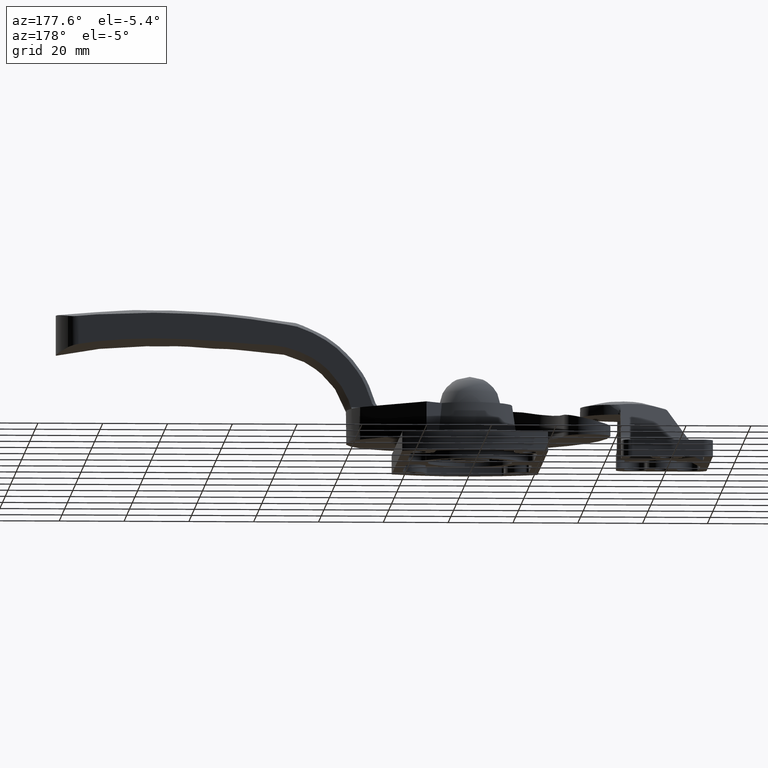
[diagram: clean part render]
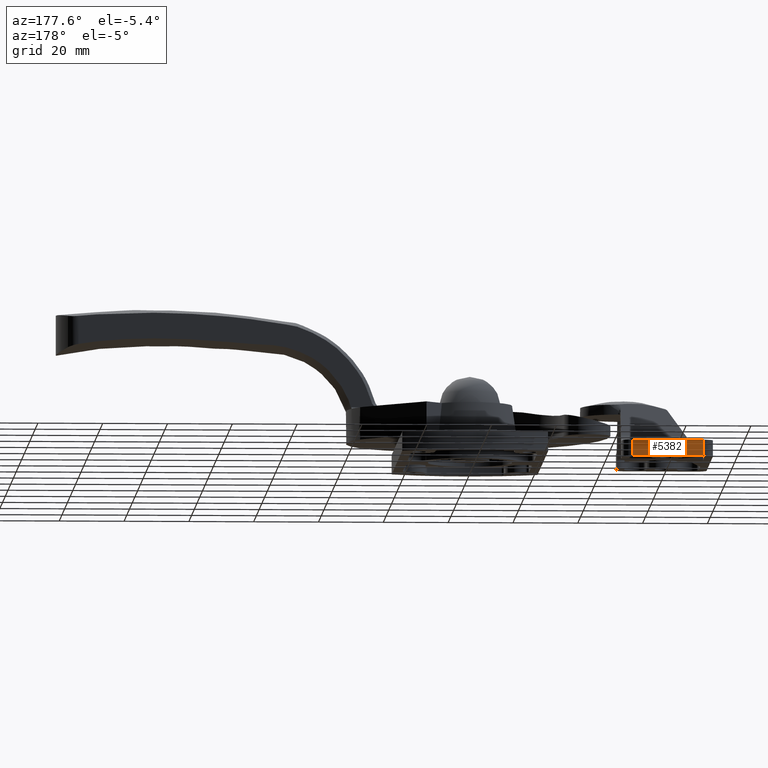
[diagram: same view with one face highlighted and labeled with its STEP entity id]
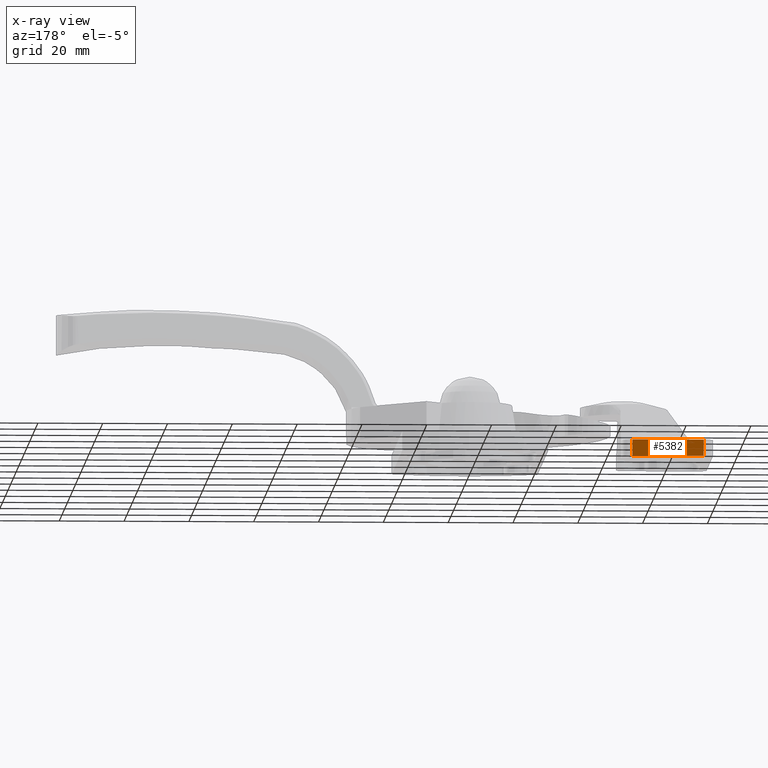
[diagram: x-ray of the same camera — body ghosted, the highlighted face saturated]
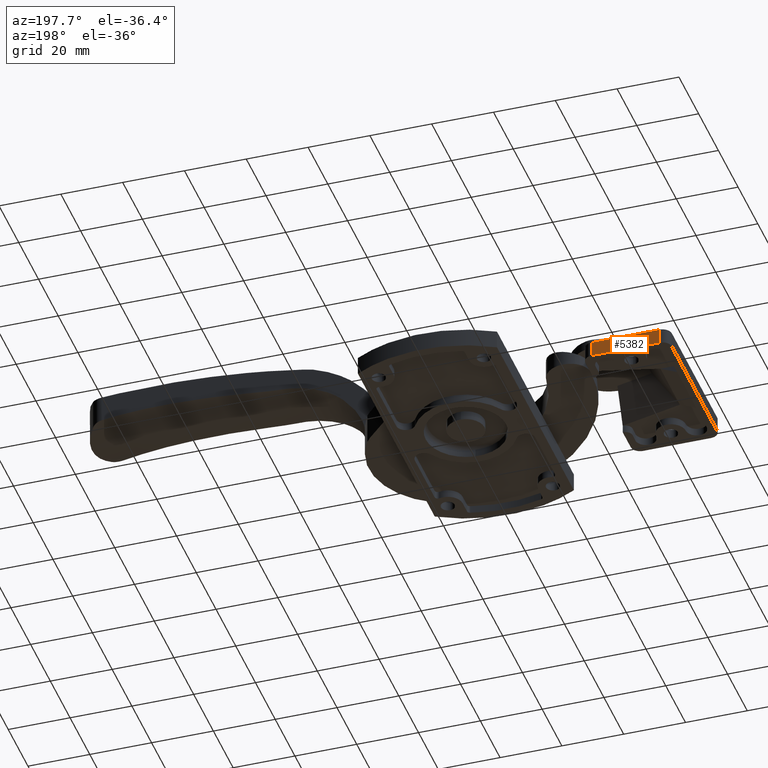
[diagram: same view with one face highlighted and labeled with its STEP entity id]
A machine part, auxiliary view. The second image highlights one B-rep face of the part: STEP entity #5382.
The next image is the same camera in x-ray: the body ghosted, the highlighted face saturated — about 0% of this face is hidden behind the body in this view.
A second angle (auxiliary view) of the same face is appended — the face is thin or edge-on in the first view.
In plain terms, the highlighted face is a freeform B-spline surface patch.
Its self-contained STEP definition (entity closure, byte-faithful):
#5316=CARTESIAN_POINT('',(71.0,-26.0,0.0));
#5317=VERTEX_POINT('',#5316);
#5332=CARTESIAN_POINT('',(71.0,-26.0,4.999999999999890));
#5333=VERTEX_POINT('',#5332);
#5347=CARTESIAN_POINT('',(71.0,-26.0,4.999999999999890));
#5348=CARTESIAN_POINT('',(71.0,-26.0,0.0));
#5349=QUASI_UNIFORM_CURVE('',1,(#5347,#5348),.UNSPECIFIED.,.F.,.U.);
#5350=EDGE_CURVE('',#5333,#5317,#5349,.T.);
#5355=CARTESIAN_POINT('',(47.901100042640273,-26.0,-0.249749990309024));
#5356=CARTESIAN_POINT('',(47.901100042640273,-26.0,5.249750124419366));
#5357=CARTESIAN_POINT('',(72.098900547445723,-26.0,-0.249749990309024));
#5358=CARTESIAN_POINT('',(72.098900547445723,-26.0,5.249750124419366));
#5359=B_SPLINE_SURFACE_WITH_KNOTS('',1,1,((#5355,#5357),(#5356,#5358)),.UNSPECIFIED.,.F.,.F.,.U.,(2,2),(2,2),(0.0,5.499500114728391),(0.0,24.197800504805461),.UNSPECIFIED.);
#5360=CARTESIAN_POINT('',(49.0,-26.0,0.0));
#5361=VERTEX_POINT('',#5360);
#5362=CARTESIAN_POINT('',(49.0,-26.0,0.0));
#5363=CARTESIAN_POINT('',(71.0,-26.0,0.0));
#5364=QUASI_UNIFORM_CURVE('',1,(#5362,#5363),.UNSPECIFIED.,.F.,.U.);
#5365=EDGE_CURVE('',#5361,#5317,#5364,.T.);
#5366=ORIENTED_EDGE('',*,*,#5365,.T.);
#5367=ORIENTED_EDGE('',*,*,#5350,.F.);
#5368=CARTESIAN_POINT('',(49.0,-26.0,4.999999999999890));
#5369=VERTEX_POINT('',#5368);
#5370=CARTESIAN_POINT('',(49.0,-26.0,4.999999999999890));
#5371=CARTESIAN_POINT('',(71.0,-26.0,4.999999999999890));
#5372=QUASI_UNIFORM_CURVE('',1,(#5370,#5371),.UNSPECIFIED.,.F.,.U.);
#5373=EDGE_CURVE('',#5369,#5333,#5372,.T.);
#5374=ORIENTED_EDGE('',*,*,#5373,.F.);
#5375=CARTESIAN_POINT('',(49.0,-26.0,4.999999999999890));
#5376=CARTESIAN_POINT('',(49.0,-26.0,0.0));
#5377=QUASI_UNIFORM_CURVE('',1,(#5375,#5376),.UNSPECIFIED.,.F.,.U.);
#5378=EDGE_CURVE('',#5369,#5361,#5377,.T.);
#5379=ORIENTED_EDGE('',*,*,#5378,.T.);
#5380=EDGE_LOOP('',(#5366,#5367,#5374,#5379));
#5381=FACE_OUTER_BOUND('',#5380,.T.);
#5382=ADVANCED_FACE('',(#5381),#5359,.F.);